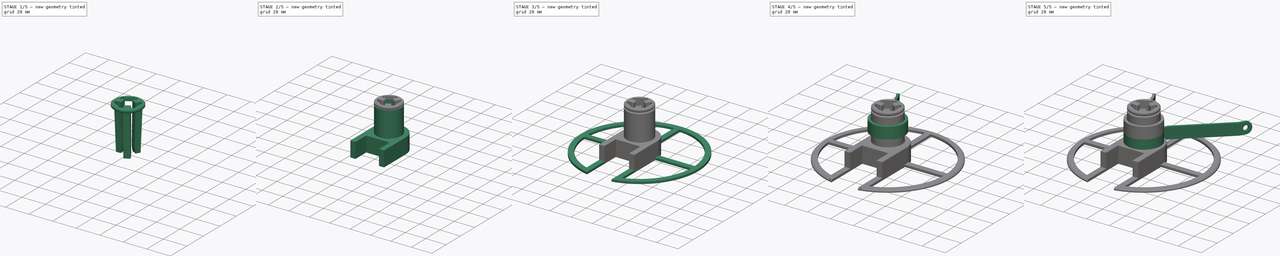
[diagram: build sequence overview — one tinted view per stage of 5, left to right]
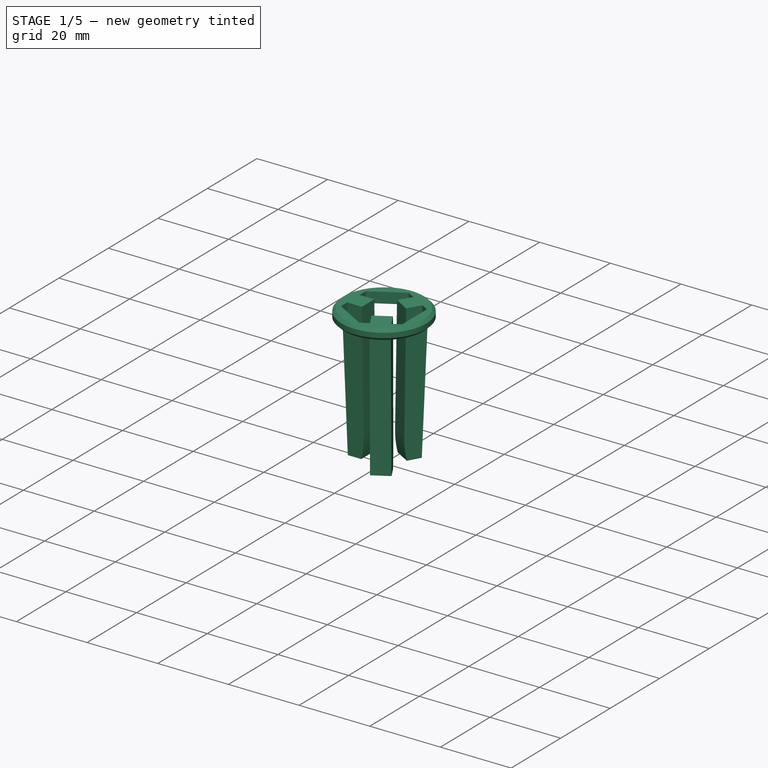
[diagram: stage 1 of 5 — iso view after this stage's code; geometry added in this stage tinted green]
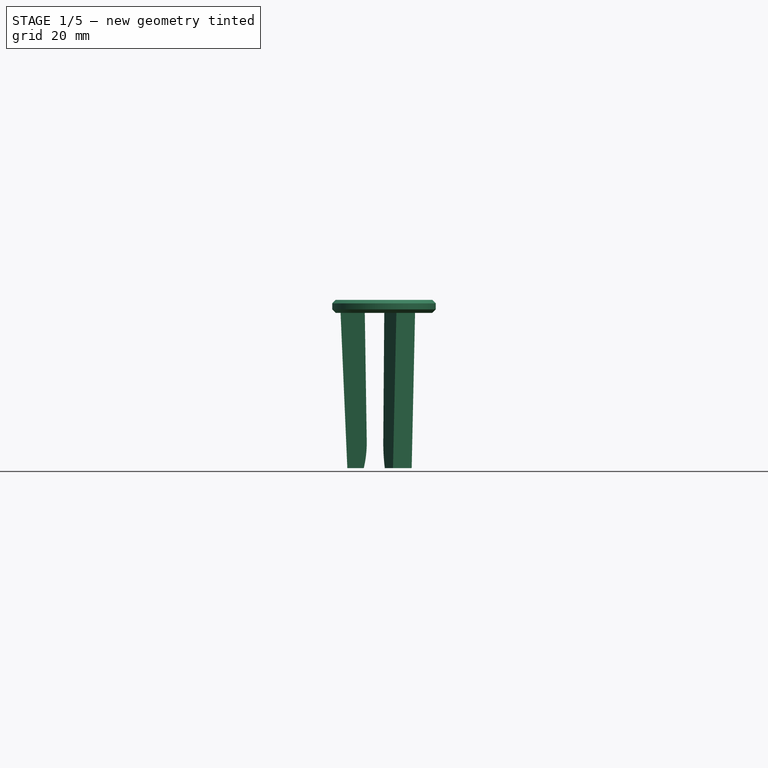
[diagram: stage 1 of 5 — front view after this stage's code; geometry added in this stage tinted green]
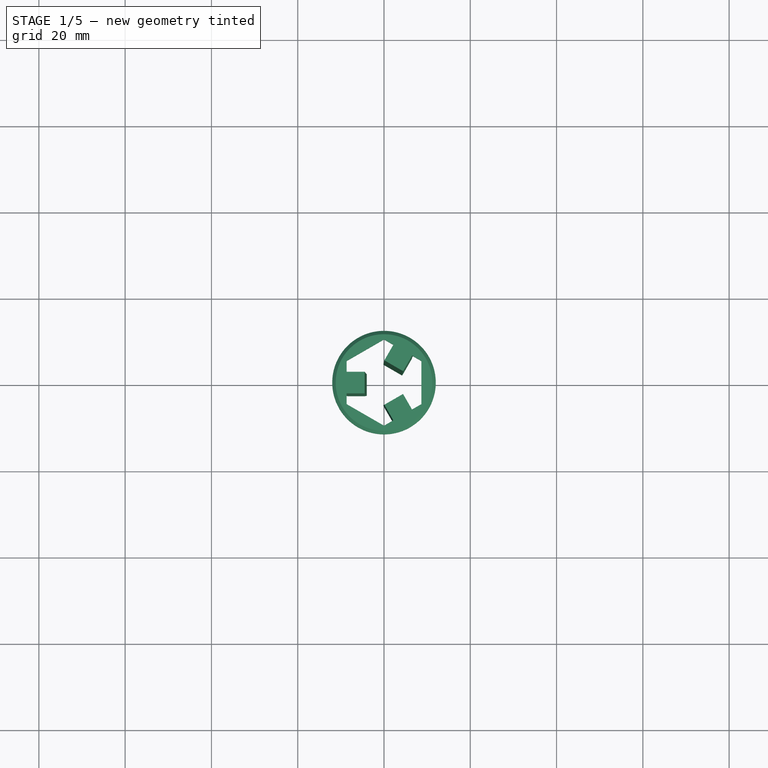
[diagram: stage 1 of 5 — top view after this stage's code; geometry added in this stage tinted green]
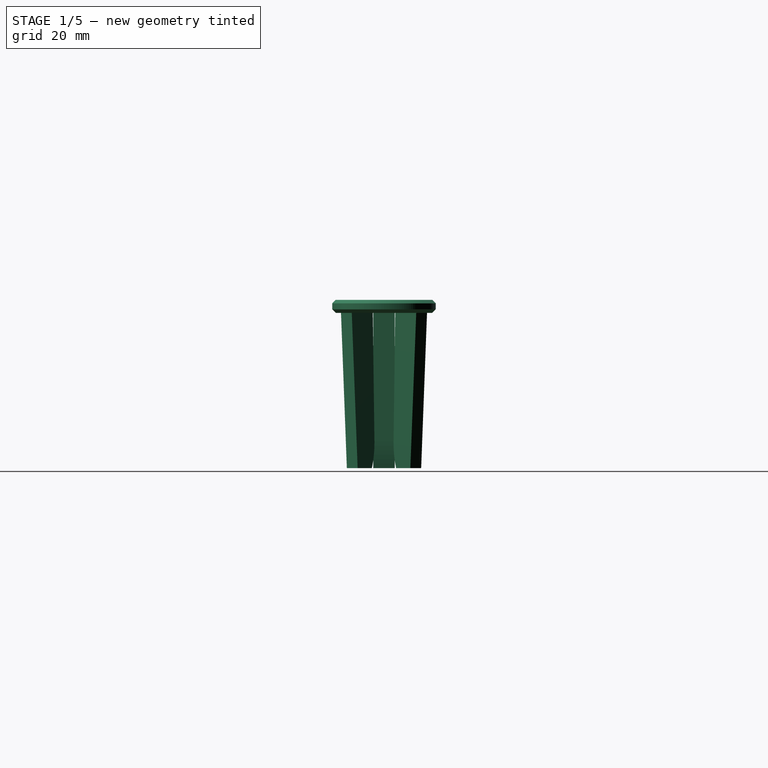
[diagram: stage 1 of 5 — right view after this stage's code; geometry added in this stage tinted green]
FCSTD DOCUMENT  (FreeCAD 0.19R)
Label: Gondola
License: All rights reserved
LicenseURL: http://en.wikipedia.org/wiki/All_rights_reserved
objects: Sketcher::SketchObject×14, PartDesign::Pad×9, PartDesign::Plane×7, PartDesign::Chamfer×6, PartDesign::Body×5, PartDesign::Pocket×3, PartDesign::Fillet×1, PartDesign::PolarPattern×1
note: 65 computed .brp shape members not serialized (recipe doc carries the construction recipe); baked Part::Feature solids carry a one-line shape summary decoded from their .brp

FEATURE [PartDesign::Body] Body  label="Main_Holder"
  Group = -> [Sketch,Pad,Sketch002,Pad001,Sketch003,Pocket,DatumPlane,Sketch004,Pocket001,Sketch009,Pad006,Sketch010,Pocket002,Chamfer,Fillet,Chamfer005]
  Origin = -> Origin
  Tip = -> Chamfer005
FEATURE [PartDesign::Plane] DatumPlane003
  Length = 60
  Placement = pos=(0,0,40) rot=(0,0,1;0rad)
  ResizeMode = 0
  Width = 60
FEATURE [Sketcher::SketchObject] Sketch011
  MapMode = 5
  Placement = pos=(0,0,40) rot=(0,0,1;0rad)
  Support = -> [DatumPlane003]
  sketch-geometry (7):
    g0: LineSegment StartX=8.74686 StartY=-5.05 StartZ=0 EndX=8.74686 EndY=5.05 EndZ=0
    g1: LineSegment StartX=8.74686 StartY=5.05 StartZ=0 EndX=1.8e-15 EndY=10.1 EndZ=0
    g2: LineSegment StartX=1.7e-15 StartY=10.1 StartZ=0 EndX=-8.74686 EndY=5.05 EndZ=0
    g3: LineSegment StartX=-8.74686 StartY=5.05 StartZ=0 EndX=-8.74686 EndY=-5.05 EndZ=0
    g4: LineSegment StartX=-8.74686 StartY=-5.05 StartZ=0 EndX=1.8e-15 EndY=-10.1 EndZ=0
    g5: LineSegment StartX=1.8e-15 StartY=-10.1 StartZ=0 EndX=8.74686 EndY=-5.05 EndZ=0
    g6: Circle [constr] CenterX=0 CenterY=0 CenterZ=0 NormalX=0 NormalY=0 NormalZ=1 AngleXU=0 Radius=10.1
  constraints (16):
    c: Coincident(g0,g1)
    c: Coincident(g1,g2)
    c: Coincident(g2,g3)
    c: Coincident(g3,g4)
    c: Coincident(g4,g5)
    c: Coincident(g5,g0)
    c: Equal(g0, g1-g5) x5
    c: PointOnObject(g0,g6)
    c: PointOnObject(g1,g6)
    c: PointOnObject(g2,g6)
    c: PointOnObject(g3,g6)
    c: PointOnObject(g4,g6)
    c: PointOnObject(g5,g6)
    c: Coincident(g6,g-1)
    c: Vertical(g0)
    c: Radius(g6) = 10.1
FEATURE [PartDesign::Plane] DatumPlane004
  Length = 252.183
  Placement = pos=(0,0,40) rot=(0,0,1;0rad)
  ResizeMode = 0
  Width = 60
FEATURE [PartDesign::Plane] DatumPlane005
  Length = 60
  Placement = pos=(0,0,60) rot=(0,0,1;0rad)
  ResizeMode = 0
  Width = 60
FEATURE [Sketcher::SketchObject] Sketch012
  MapMode = 5
  Placement = pos=(0,0,60) rot=(0,0,1;0rad)
  Support = -> [DatumPlane005]
  sketch-geometry (7):
    g0: LineSegment StartX=8.22724 StartY=-4.75 StartZ=0 EndX=8.22724 EndY=4.75 EndZ=0
    g1: LineSegment StartX=8.22724 StartY=4.75 StartZ=0 EndX=1.581e-13 EndY=9.5 EndZ=0
    g2: LineSegment StartX=1.579e-13 StartY=9.5 StartZ=0 EndX=-8.22724 EndY=4.75 EndZ=0
    g3: LineSegment StartX=-8.22724 StartY=4.75 StartZ=0 EndX=-8.22724 EndY=-4.75 EndZ=0
    g4: LineSegment StartX=-8.22724 StartY=-4.75 StartZ=0 EndX=1.581e-13 EndY=-9.5 EndZ=0
    g5: LineSegment StartX=1.582e-13 StartY=-9.5 StartZ=0 EndX=8.22724 EndY=-4.75 EndZ=0
    g6: Circle [constr] CenterX=0 CenterY=0 CenterZ=0 NormalX=0 NormalY=0 NormalZ=1 AngleXU=0 Radius=9.5
  constraints (16):
    c: Coincident(g0,g1)
    c: Coincident(g1,g2)
    c: Coincident(g2,g3)
    c: Coincident(g3,g4)
    c: Coincident(g4,g5)
    c: Coincident(g5,g0)
    c: Equal(g0, g1-g5) x5
    c: PointOnObject(g0,g6)
    c: PointOnObject(g1,g6)
    c: PointOnObject(g2,g6)
    c: PointOnObject(g3,g6)
    c: PointOnObject(g4,g6)
    c: PointOnObject(g5,g6)
    c: Coincident(g6,g-1)
    c: Vertical(g0)
    c: Radius(g6) = 9.5
FEATURE [PartDesign::Body] Body003  label="Insert"
  Group = -> [DatumPlane003,Sketch011,DatumPlane005,Sketch012]
  Origin = -> Origin003
FEATURE [Sketcher::SketchObject] Sketch013
  MapMode = 5
  Placement = pos=(0,0,0) rot=(1,0,0;1.5708rad)
  Support = -> [XZ_Plane004]
  sketch-geometry (5):
    g0: LineSegment StartX=-10.2 StartY=43 StartZ=0 EndX=-4.5 EndY=43 EndZ=0
    g1: LineSegment StartX=-4.5 StartY=43 StartZ=0 EndX=-4 EndY=10.196 EndZ=0
    g2: LineSegment StartX=-10.2 StartY=43 StartZ=0 EndX=-8.5 EndY=4 EndZ=0
    g3: LineSegment StartX=-8.5 StartY=4 StartZ=0 EndX=-4.68998 EndY=4 EndZ=0
    g4: ArcOfCircle CenterX=-28.7739 CenterY=9.81838 CenterZ=0 NormalX=0 NormalY=0 NormalZ=1 AngleXU=0 Radius=24.7767 StartAngle=6.04614 EndAngle=6.29843
  constraints (15):
    c: Horizontal(g0)
    c: Coincident(g0,g1)
    c: Coincident(g0,g2)
    c: Coincident(g2,g3)
    c: Horizontal(g3)
    c: Coincident(g4,g3)
    c: Tangent(g4,g1) = 1.5708
    c: DistanceY(g-1,g0) = 43
    c: DistanceX(g0,g-1) = 4.5
    c: DistanceX(g2,g-1) = 8.5
    c: DistanceX(g0,g-1) = 10.2
    c: DistanceY(g-1,g3) = 4
    c: DistanceX(g1,g-1) = 4
    c: DistanceX(g4) = -28.7739
    c: DistanceY(g4) = 9.81837
FEATURE [PartDesign::Pad] Pad007
  Direction = (1,1,1)
  Length = 5
  Length2 = 100
  Midplane = true
  Placement = pos=(0,0,0) rot=(1,0,0;1.5708rad)
  Profile = -> Sketch013
  Type = 0
FEATURE [PartDesign::Plane] DatumPlane006
  Length = 60
  Placement = pos=(0,0,40) rot=(0,0,1;0rad)
  ResizeMode = 0
  Width = 60
FEATURE [Sketcher::SketchObject] Sketch014
  MapMode = 5
  Placement = pos=(0,0,40) rot=(0,0,1;0rad)
  Support = -> [DatumPlane006]
  sketch-geometry (8):
    g0: LineSegment StartX=8.66025 StartY=-5 StartZ=0 EndX=8.66025 EndY=5 EndZ=0
    g1: LineSegment StartX=8.66025 StartY=5 StartZ=0 EndX=3.3964e-12 EndY=10 EndZ=0
    g2: LineSegment StartX=3.3964e-12 StartY=10 StartZ=0 EndX=-8.66025 EndY=5 EndZ=0
    g3: LineSegment StartX=-8.66025 StartY=5 StartZ=0 EndX=-8.66025 EndY=-5 EndZ=0
    g4: LineSegment StartX=-8.66025 StartY=-5 StartZ=0 EndX=3.3964e-12 EndY=-10 EndZ=0
    g5: LineSegment StartX=3.3964e-12 StartY=-10 StartZ=0 EndX=8.66025 EndY=-5 EndZ=0
    g6: Circle [constr] CenterX=0 CenterY=0 CenterZ=0 NormalX=0 NormalY=0 NormalZ=1 AngleXU=0 Radius=10
    g7: Circle CenterX=0 CenterY=0 CenterZ=0 NormalX=0 NormalY=0 NormalZ=1 AngleXU=0 Radius=12
  constraints (18):
    c: Coincident(g0,g1)
    c: Coincident(g1,g2)
    c: Coincident(g2,g3)
    c: Coincident(g3,g4)
    c: Coincident(g4,g5)
    c: Coincident(g5,g0)
    c: Equal(g0, g1-g5) x5
    c: PointOnObject(g0,g6)
    c: PointOnObject(g1,g6)
    c: PointOnObject(g2,g6)
    c: PointOnObject(g3,g6)
    c: PointOnObject(g4,g6)
    c: PointOnObject(g5,g6)
    c: Coincident(g6,g-1)
    c: Vertical(g0)
    c: Radius(g6) = 10
    c: Coincident(g7,g-1)
    c: Radius(g7) = 12
FEATURE [PartDesign::Pad] Pad008
  BaseFeature = -> Pad007
  Direction = (1,1,1)
  Length = 3
  Length2 = 100
  Placement = pos=(0,0,0) rot=(1,0,0;1.5708rad)
  Profile = -> Sketch014
  Type = 0
FEATURE [PartDesign::PolarPattern] PolarPattern
  Angle = 360
  Axis = -> Sketch014 [N_Axis]
  BaseFeature = -> Pad008
  Occurrences = 3
  Originals = -> [Pad008,Pad007]
  Placement = pos=(0,0,0) rot=(1,0,0;1.5708rad)
FEATURE [PartDesign::Chamfer] Chamfer006
  Angle = 45
  Base = -> PolarPattern [Edge8,Edge7,Edge2,Edge27,Edge4,Edge5]
  BaseFeature = -> PolarPattern
  ChamferType = 0
  FlipDirection = false
  Placement = pos=(0,0,0) rot=(1,0,0;1.5708rad)
  Size = 0.8
  Size2 = 1
  SupportTransform = false
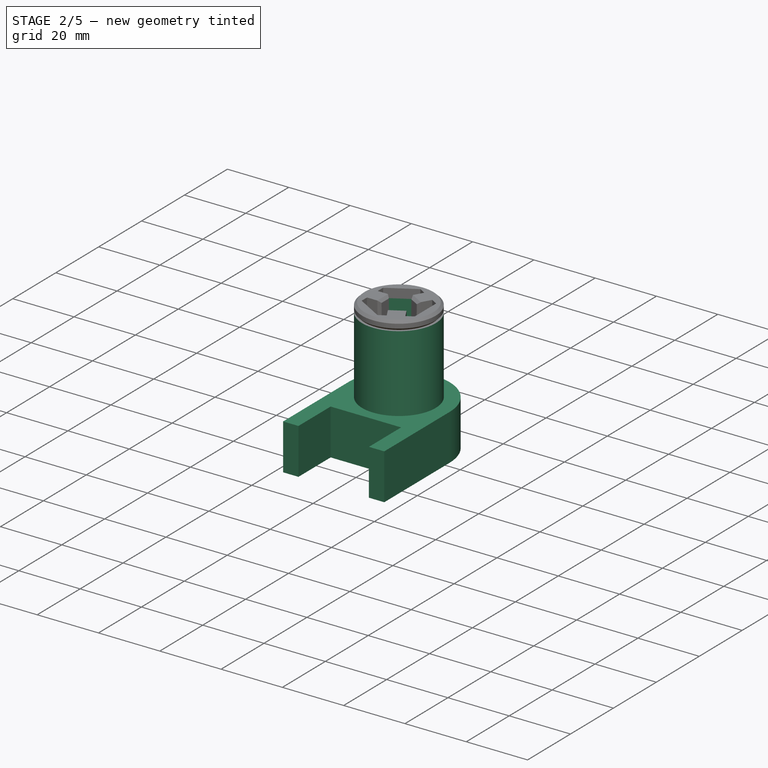
[diagram: stage 2 of 5 — iso view after this stage's code; geometry added in this stage tinted green]
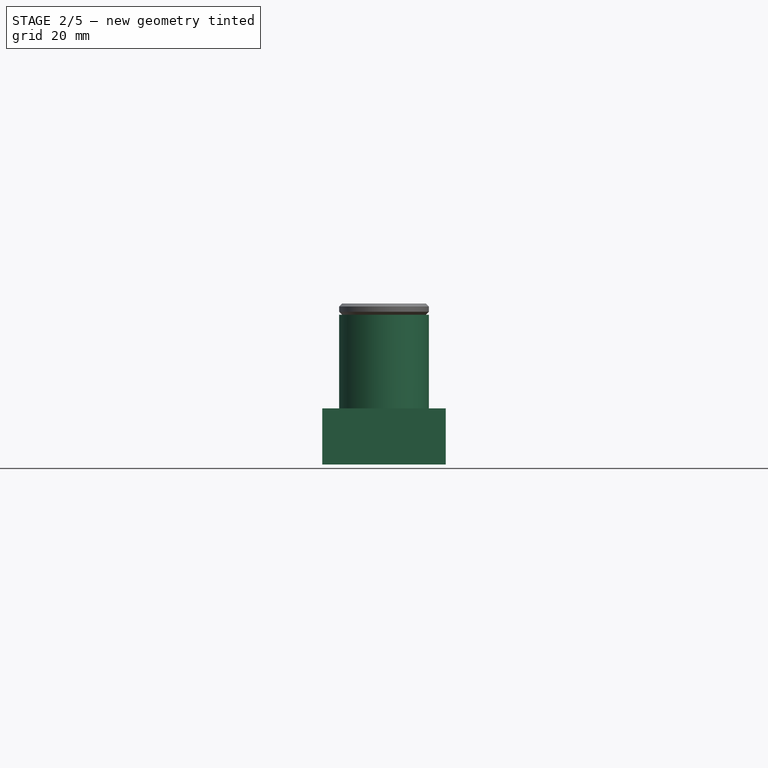
[diagram: stage 2 of 5 — front view after this stage's code; geometry added in this stage tinted green]
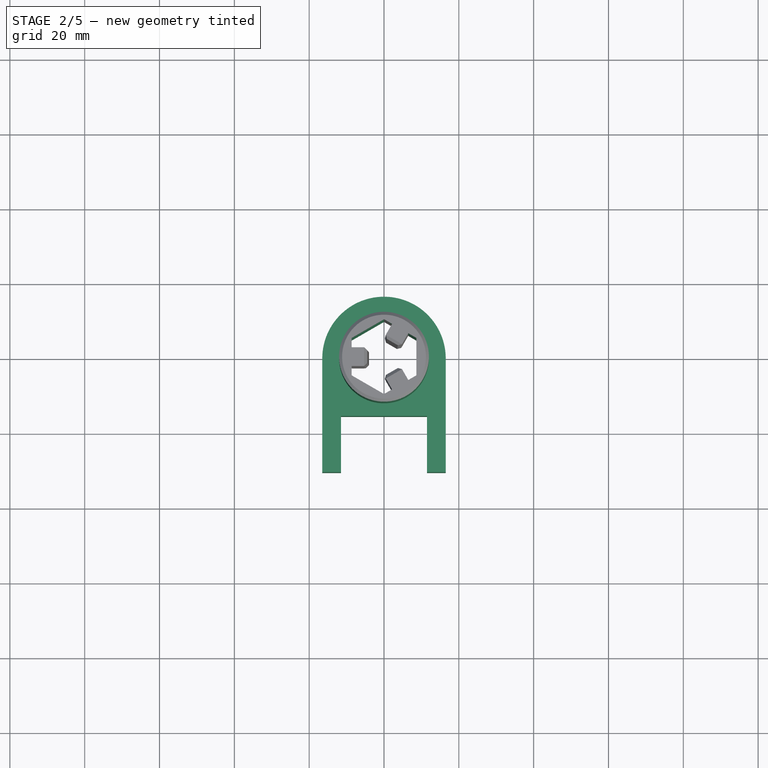
[diagram: stage 2 of 5 — top view after this stage's code; geometry added in this stage tinted green]
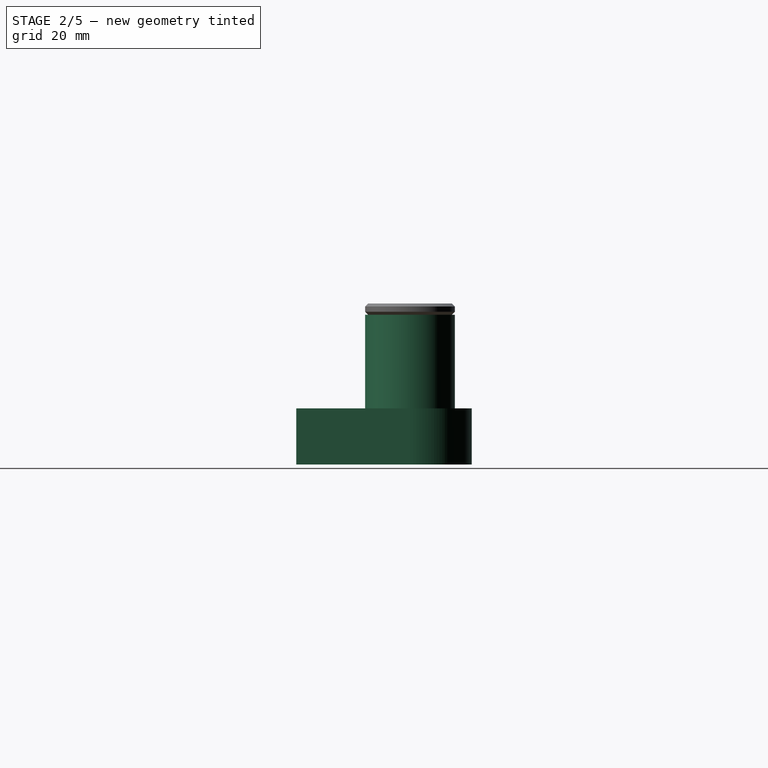
[diagram: stage 2 of 5 — right view after this stage's code; geometry added in this stage tinted green]
FEATURE [Sketcher::SketchObject] Sketch
  MapMode = 5
  Support = -> [XY_Plane]
  sketch-geometry (9):
    g0: Circle [constr] CenterX=0 CenterY=0 CenterZ=0 NormalX=0 NormalY=0 NormalZ=1 AngleXU=0 Radius=10.3923
    g1: LineSegment StartX=-16.5 StartY=-30.3923 StartZ=0 EndX=-11.5 EndY=-30.3923 EndZ=0
    g2: LineSegment StartX=-11.5 StartY=-30.3923 StartZ=0 EndX=-11.5 EndY=-15.3923 EndZ=0
    g3: LineSegment StartX=-11.5 StartY=-15.3923 StartZ=0 EndX=11.5 EndY=-15.3923 EndZ=0
    g4: LineSegment StartX=11.5 StartY=-15.3923 StartZ=0 EndX=11.5 EndY=-30.3923 EndZ=0
    g5: LineSegment StartX=11.5 StartY=-30.3923 StartZ=0 EndX=16.5 EndY=-30.3923 EndZ=0
    g6: LineSegment StartX=16.5 StartY=-30.3923 StartZ=0 EndX=16.5 EndY=0 EndZ=0
    g7: LineSegment StartX=-16.5 StartY=-30.3923 StartZ=0 EndX=-16.5 EndY=-3.6e-15 EndZ=0
    g8: ArcOfCircle CenterX=0 CenterY=0 CenterZ=0 NormalX=0 NormalY=0 NormalZ=1 AngleXU=0 Radius=16.5 StartAngle=0 EndAngle=3.14159
  constraints (19):
    c: Horizontal(g1)
    c: Coincident(g1,g2)
    c: Coincident(g2,g3)
    c: Coincident(g3,g4)
    c: Vertical(g4)
    c: Coincident(g4,g5)
    c: Horizontal(g5)
    c: Coincident(g5,g6)
    c: Vertical(g6)
    c: Coincident(g1,g7)
    c: Vertical(g7)
    c: Tangent(g8,g7) = 1.5708
    c: Tangent(g8,g6) = -1.5708
    c: Vertical(g2)
    c: Symmetric(g2,g3,g-2)
    c: Equal(g7,g6)
    c: DistanceX(g1,g4) = 23
    c: DistanceX(g1,g1) = 5
    c: DistanceY(g1,g2) = 15
FEATURE [PartDesign::Pad] Pad
  Direction = (1,1,1)
  Length = 15
  Length2 = 100
  Profile = -> Sketch
  Type = 0
FEATURE [Sketcher::SketchObject] Sketch002
  MapMode = 5
  Placement = pos=(0,0,15) rot=(0,0,1;0rad)
  Support = -> [Pad]
  sketch-geometry (8):
    g0: LineSegment [constr] StartX=0 StartY=-10 StartZ=0 EndX=8.66025 EndY=-5 EndZ=0
    g1: LineSegment [constr] StartX=8.66025 StartY=-5 StartZ=0 EndX=8.66025 EndY=5 EndZ=0
    g2: LineSegment [constr] StartX=8.66025 StartY=5 StartZ=0 EndX=2.6059e-12 EndY=10 EndZ=0
    g3: LineSegment [constr] StartX=2.6059e-12 StartY=10 StartZ=0 EndX=-8.66025 EndY=5 EndZ=0
    g4: LineSegment [constr] StartX=-8.66025 StartY=5 StartZ=0 EndX=-8.66025 EndY=-5 EndZ=0
    g5: LineSegment [constr] StartX=-8.66025 StartY=-5 StartZ=0 EndX=0 EndY=-10 EndZ=0
    g6: Circle [constr] CenterX=0 CenterY=0 CenterZ=0 NormalX=0 NormalY=0 NormalZ=1 AngleXU=0 Radius=10
    g7: Circle CenterX=0 CenterY=0 CenterZ=0 NormalX=0 NormalY=0 NormalZ=1 AngleXU=0 Radius=12
  constraints (18):
    c: Coincident(g0,g1)
    c: Coincident(g1,g2)
    c: Coincident(g2,g3)
    c: Coincident(g3,g4)
    c: Coincident(g4,g5)
    c: Coincident(g5,g0)
    c: Equal(g0, g1-g5) x5
    c: PointOnObject(g0,g6)
    c: PointOnObject(g1,g6)
    c: PointOnObject(g2,g6)
    c: PointOnObject(g3,g6)
    c: PointOnObject(g4,g6)
    c: PointOnObject(g5,g6)
    c: Coincident(g6,g-1)
    c: PointOnObject(g5,g-2)
    c: Radius(g6) = 10
    c: Coincident(g7,g-1)
    c: Radius(g7) = 12
FEATURE [PartDesign::Pad] Pad001
  BaseFeature = -> Pad
  Direction = (1,1,1)
  Length = 25
  Length2 = 100
  Profile = -> Sketch002
  Type = 0
FEATURE [Sketcher::SketchObject] Sketch003
  MapMode = 5
  Placement = pos=(0,0,40) rot=(0,0,1;0rad)
  Support = -> [Pad001]
  sketch-geometry (7):
    g0: LineSegment StartX=0 StartY=-10 StartZ=0 EndX=8.66025 EndY=-5 EndZ=0
    g1: LineSegment StartX=8.66025 StartY=-5 StartZ=0 EndX=8.66025 EndY=5 EndZ=0
    g2: LineSegment StartX=8.66025 StartY=5 StartZ=0 EndX=1.6e-14 EndY=10 EndZ=0
    g3: LineSegment StartX=1.6e-14 StartY=10 StartZ=0 EndX=-8.66025 EndY=5 EndZ=0
    g4: LineSegment StartX=-8.66025 StartY=5 StartZ=0 EndX=-8.66025 EndY=-5 EndZ=0
    g5: LineSegment StartX=-8.66025 StartY=-5 StartZ=0 EndX=0 EndY=-10 EndZ=0
    g6: Circle [constr] CenterX=0 CenterY=0 CenterZ=0 NormalX=0 NormalY=0 NormalZ=1 AngleXU=0 Radius=10
  constraints (16):
    c: Coincident(g0,g1)
    c: Coincident(g1,g2)
    c: Coincident(g2,g3)
    c: Coincident(g3,g4)
    c: Coincident(g4,g5)
    c: Coincident(g5,g0)
    c: Equal(g0, g1-g5) x5
    c: PointOnObject(g0,g6)
    c: PointOnObject(g1,g6)
    c: PointOnObject(g2,g6)
    c: PointOnObject(g3,g6)
    c: PointOnObject(g4,g6)
    c: PointOnObject(g5,g6)
    c: Coincident(g6,g-1)
    c: PointOnObject(g5,g-2)
    c: Radius(g6) = 10
FEATURE [PartDesign::Pocket] Pocket
  BaseFeature = -> Pad001
  Length = 5
  Length2 = 100
  Profile = -> Sketch003
  Type = 1
FEATURE [PartDesign::Chamfer] Chamfer007
  Angle = 45
  Base = -> Chamfer006 [Face35,Face34,Face42,Face43,Face39,Face38]
  BaseFeature = -> Chamfer006
  ChamferType = 0
  FlipDirection = false
  Placement = pos=(0,0,0) rot=(1,0,0;1.5708rad)
  Size = 0.8
  Size2 = 1
  SupportTransform = false
FEATURE [PartDesign::Body] Body004  label="Insert1"
  Group = -> [Sketch013,Pad007,DatumPlane006,Sketch014,Pad008,PolarPattern,Chamfer006,Chamfer007]
  Origin = -> Origin004
  Tip = -> Chamfer007
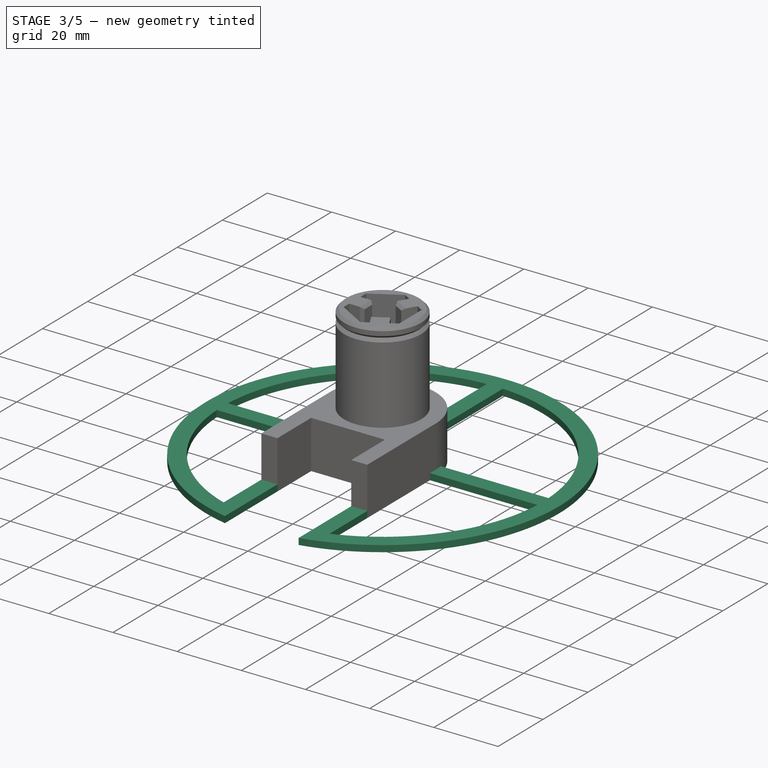
[diagram: stage 3 of 5 — iso view after this stage's code; geometry added in this stage tinted green]
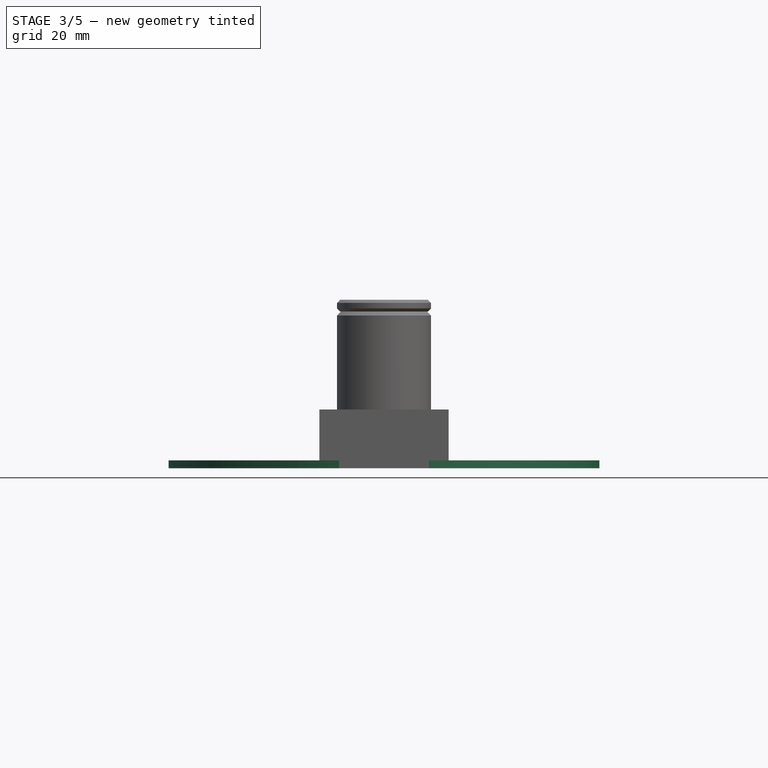
[diagram: stage 3 of 5 — front view after this stage's code; geometry added in this stage tinted green]
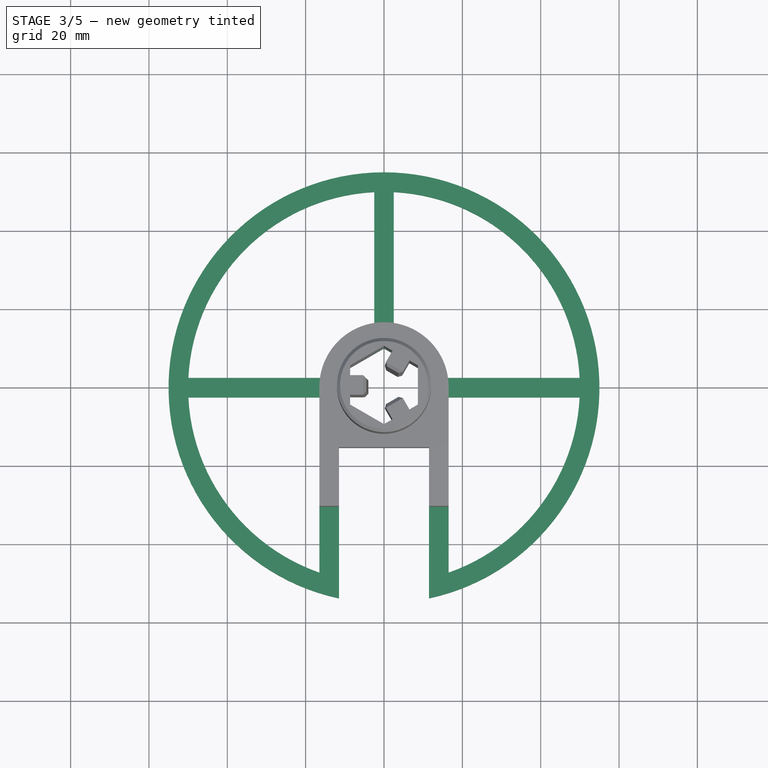
[diagram: stage 3 of 5 — top view after this stage's code; geometry added in this stage tinted green]
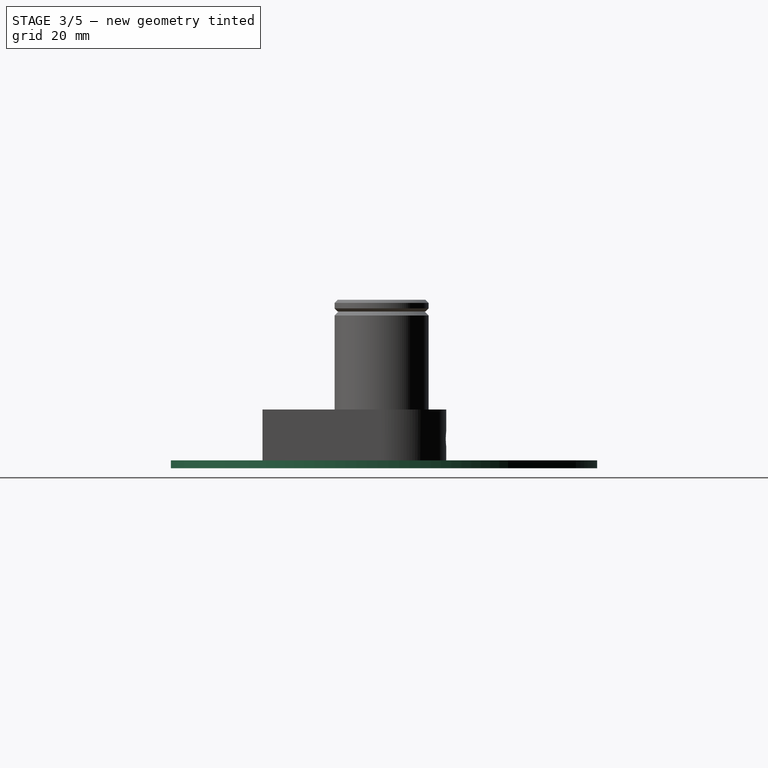
[diagram: stage 3 of 5 — right view after this stage's code; geometry added in this stage tinted green]
FEATURE [PartDesign::Plane] DatumPlane
  AttachmentOffset = pos=(0,-5,-28) rot=(0,0,1;0rad)
  Length = 126.89
  MapMode = 5
  Placement = pos=(0,12.6077,-5) rot=(1,0,0;1.5708rad)
  ResizeMode = 0
  Support = -> [Pad]
  Width = 81.91
FEATURE [Sketcher::SketchObject] Sketch004
  ExternalGeometry = -> [Pad]
  MapMode = 5
  Placement = pos=(0,12.6077,-5) rot=(1,0,0;1.5708rad)
  Support = -> [DatumPlane]
  sketch-geometry (3):
    g0: LineSegment [constr] StartX=11.5 StartY=20 StartZ=0 EndX=-11.5 EndY=5 EndZ=0
    g1: LineSegment [constr] StartX=-11.5 StartY=20 StartZ=0 EndX=11.5 EndY=5 EndZ=0
    g2: Circle CenterX=0 CenterY=12.5 CenterZ=0 NormalX=0 NormalY=0 NormalZ=1 AngleXU=0 Radius=2
  constraints (7):
    c: PointOnObject(g2,g-2)
    c: Coincident(g1,g-4)
    c: Coincident(g0,g-3)
    c: Coincident(g1,g-3)
    c: Coincident(g0,g-4)
    c: PointOnObject(g2,g0)
    c: Radius(g2) = 2
FEATURE [PartDesign::Pocket] Pocket001
  BaseFeature = -> Pocket
  Length = 10
  Length2 = 100
  Profile = -> Sketch004
  Type = 0
FEATURE [Sketcher::SketchObject] Sketch009
  ExternalGeometry = -> [Pocket001]
  MapMode = 5
  Support = -> [XY_Plane]
  sketch-geometry (22):
    g0: ArcOfCircle CenterX=0 CenterY=0 CenterZ=0 NormalX=0 NormalY=0 NormalZ=1 AngleXU=0 Radius=55 StartAngle=4.92303 EndAngle=10.7849
    g1: ArcOfCircle CenterX=0 CenterY=0 CenterZ=0 NormalX=0 NormalY=0 NormalZ=1 AngleXU=0 Radius=50 StartAngle=1.62082 EndAngle=3.09157
    g2: LineSegment StartX=-2.5 StartY=16.3095 StartZ=0 EndX=-2.5 EndY=49.9375 EndZ=0
    g3: LineSegment StartX=2.5 StartY=16.3095 StartZ=0 EndX=2.5 EndY=49.9375 EndZ=0
    g4: ArcOfCircle CenterX=0 CenterY=0 CenterZ=0 NormalX=0 NormalY=0 NormalZ=1 AngleXU=0 Radius=16.5 StartAngle=1.4187 EndAngle=1.7229
    g5: LineSegment StartX=-11.5 StartY=-30.3923 StartZ=0 EndX=-11.5 EndY=-53.7843 EndZ=0
    g6: LineSegment StartX=11.5 StartY=-30.3923 StartZ=0 EndX=11.5 EndY=-53.7843 EndZ=0
    g7: LineSegment StartX=-16.5 StartY=-30.3923 StartZ=0 EndX=-16.5 EndY=-47.199 EndZ=0
    g8: LineSegment StartX=16.5 StartY=-30.3923 StartZ=0 EndX=16.5 EndY=-47.199 EndZ=0
    g9: ArcOfCircle CenterX=0 CenterY=0 CenterZ=0 NormalX=0 NormalY=0 NormalZ=1 AngleXU=0 Radius=50 StartAngle=5.04869 EndAngle=6.23316
    g10: LineSegment StartX=-16.5 StartY=-30.3923 StartZ=0 EndX=-11.5 EndY=-30.3923 EndZ=0
    g11: LineSegment StartX=11.5 StartY=-30.3923 StartZ=0 EndX=16.5 EndY=-30.3923 EndZ=0
    g12: LineSegment StartX=-16.5 StartY=-2.5 StartZ=0 EndX=-49.9375 EndY=-2.5 EndZ=0
    g13: LineSegment StartX=-16.3095 StartY=2.5 StartZ=0 EndX=-49.9375 EndY=2.5 EndZ=0
    g14: LineSegment StartX=16.3095 StartY=2.5 StartZ=0 EndX=49.9375 EndY=2.5 EndZ=0
    g15: LineSegment StartX=16.5 StartY=-2.5 StartZ=0 EndX=49.9375 EndY=-2.5 EndZ=0
    g16: ArcOfCircle CenterX=0 CenterY=0 CenterZ=0 NormalX=0 NormalY=0 NormalZ=1 AngleXU=0 Radius=50 StartAngle=3.19161 EndAngle=4.37609
    g17: ArcOfCircle CenterX=0 CenterY=0 CenterZ=0 NormalX=0 NormalY=0 NormalZ=1 AngleXU=0 Radius=50 StartAngle=0.0500209 EndAngle=1.52078
    g18: LineSegment StartX=-16.5 StartY=-2.5 StartZ=0 EndX=-16.5 EndY=-5.3e-15 EndZ=0
    g19: LineSegment StartX=16.5 StartY=-2.5 StartZ=0 EndX=16.5 EndY=0 EndZ=0
    g20: ArcOfCircle CenterX=0 CenterY=0 CenterZ=0 NormalX=0 NormalY=0 NormalZ=1 AngleXU=0 Radius=16.5 StartAngle=2.98949 EndAngle=3.14159
    g21: ArcOfCircle CenterX=0 CenterY=0 CenterZ=0 NormalX=0 NormalY=0 NormalZ=1 AngleXU=0 Radius=16.5 StartAngle=0 EndAngle=0.152101
  constraints (58):
    c: Coincident(g0,g-1)
    c: Coincident(g1,g0)
    c: PointOnObject(g2,g-5)
    c: Vertical(g2)
    c: Vertical(g3)
    c: Coincident(g1,g2)
    c: Coincident(g17,g3)
    c: Coincident(g4,g0)
    c: Coincident(g4,g2)
    c: Coincident(g4,g3)
    c: Coincident(g5,g-6)
    c: Vertical(g5)
    c: Coincident(g6,g-7)
    c: Vertical(g6)
    c: Coincident(g7,g-4)
    c: Vertical(g7)
    c: Coincident(g8,g-3)
    c: PointOnObject(g8,g1)
    c: Vertical(g8)
    c: Coincident(g0,g6)
    c: Coincident(g0,g5)
    c: Coincident(g1,g9)
    c: Coincident(g16,g7)
    c: PointOnObject(g9,g8)
    c: Symmetric(g3,g1,g-2)
    c: Radius(g0) = 55
    c: Radius(g1) = 50
    c: DistanceX(g1,g3) = 5
    c: Coincident(g10,g7)
    c: Coincident(g10,g5)
    c: Coincident(g11,g6)
    c: Coincident(g11,g8)
    c: PointOnObject(g12,g-4)
    c: Horizontal(g12)
    c: Horizontal(g13)
    c: Horizontal(g14)
    c: PointOnObject(g15,g-3)
    c: Horizontal(g15)
    c: Coincident(g1,g13)
    c: Coincident(g16,g12)
    c: Coincident(g1,g16)
    c: Coincident(g9,g15)
    c: Coincident(g17,g14)
    c: Coincident(g9,g17)
    c: Coincident(g18,g12)
    c: Coincident(g18,g-5)
    c: Coincident(g19,g15)
    c: Coincident(g20,g0)
    c: Coincident(g20,g18)
    c: Coincident(g20,g13)
    c: Coincident(g21,g0)
    c: Coincident(g21,g14)
    c: Coincident(g21,g19)
    c: Symmetric(g12,g1,g-1)
    c: Symmetric(g9,g14,g-1)
    c: DistanceY(g12,g1) = 5
    c: DistanceY(g9,g14) = 5
    c: Coincident(g19,g-5)
FEATURE [PartDesign::Pad] Pad006
  BaseFeature = -> Pocket001
  Direction = (1,1,1)
  Length = 2
  Length2 = 100
  Profile = -> Sketch009
  Type = 0
FEATURE [PartDesign::Body] Body001  label="Arm1"
  Group = -> [Sketch005,Pad002,DatumPlane001,Sketch006,Pad003,Chamfer002]
  Origin = -> Origin001
  Placement = pos=(0,0,2) rot=(0,0,1;0rad)
  Tip = -> Chamfer002
FEATURE [Sketcher::SketchObject] Sketch010
  ExternalGeometry = -> [Sketch004]
  MapMode = 5
  Placement = pos=(0,12.6077,-5) rot=(1,0,0;1.5708rad)
  Support = -> [DatumPlane]
  sketch-geometry (7):
    g0: LineSegment StartX=5.6e-15 StartY=8.34308 StartZ=0 EndX=3.6 EndY=10.4215 EndZ=0
    g1: LineSegment StartX=3.6 StartY=10.4215 StartZ=0 EndX=3.6 EndY=14.5785 EndZ=0
    g2: LineSegment StartX=3.6 StartY=14.5785 StartZ=0 EndX=0 EndY=16.6569 EndZ=0
    g3: LineSegment StartX=-4e-16 StartY=16.6569 StartZ=0 EndX=-3.6 EndY=14.5785 EndZ=0
    g4: LineSegment StartX=-3.6 StartY=14.5785 StartZ=0 EndX=-3.6 EndY=10.4215 EndZ=0
    g5: LineSegment StartX=-3.6 StartY=10.4215 StartZ=0 EndX=5.8e-15 EndY=8.34308 EndZ=0
    g6: Circle [constr] CenterX=0 CenterY=12.5 CenterZ=0 NormalX=0 NormalY=0 NormalZ=1 AngleXU=0 Radius=4.15692
  constraints (16):
    c: Coincident(g0,g1)
    c: Coincident(g1,g2)
    c: Coincident(g2,g3)
    c: Coincident(g3,g4)
    c: Coincident(g4,g5)
    c: Coincident(g5,g0)
    c: Equal(g0, g1-g5) x5
    c: PointOnObject(g0,g6)
    c: PointOnObject(g1,g6)
    c: PointOnObject(g2,g6)
    c: PointOnObject(g3,g6)
    c: PointOnObject(g4,g6)
    c: PointOnObject(g5,g6)
    c: Coincident(g6,g-3)
    c: DistanceX(g4,g0) = 7.2
    c: Vertical(g1)
FEATURE [PartDesign::Pocket] Pocket002
  BaseFeature = -> Pad006
  Length = 5
  Length2 = 100
  Profile = -> Sketch010
  Reversed = true
  Type = 0
FEATURE [PartDesign::Body] Body002  label="Arm002"
  Group = -> [Sketch007,Pad005,DatumPlane002,Sketch008,Pad004,Chamfer004]
  Origin = -> Origin002
  Placement = pos=(0,0,2) rot=(0,0,1;0rad)
  Tip = -> Chamfer004
FEATURE [PartDesign::Chamfer] Chamfer
  Angle = 45
  Base = -> Pocket002 [Edge97]
  BaseFeature = -> Pocket002
  ChamferType = 0
  FlipDirection = false
  Size = 1
  Size2 = 1
  SupportTransform = false
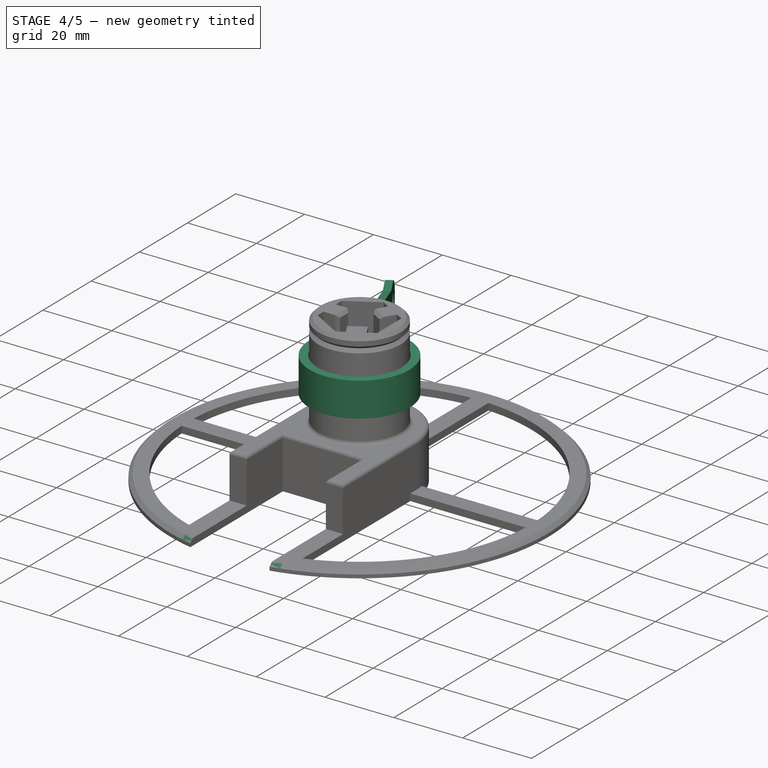
[diagram: stage 4 of 5 — iso view after this stage's code; geometry added in this stage tinted green]
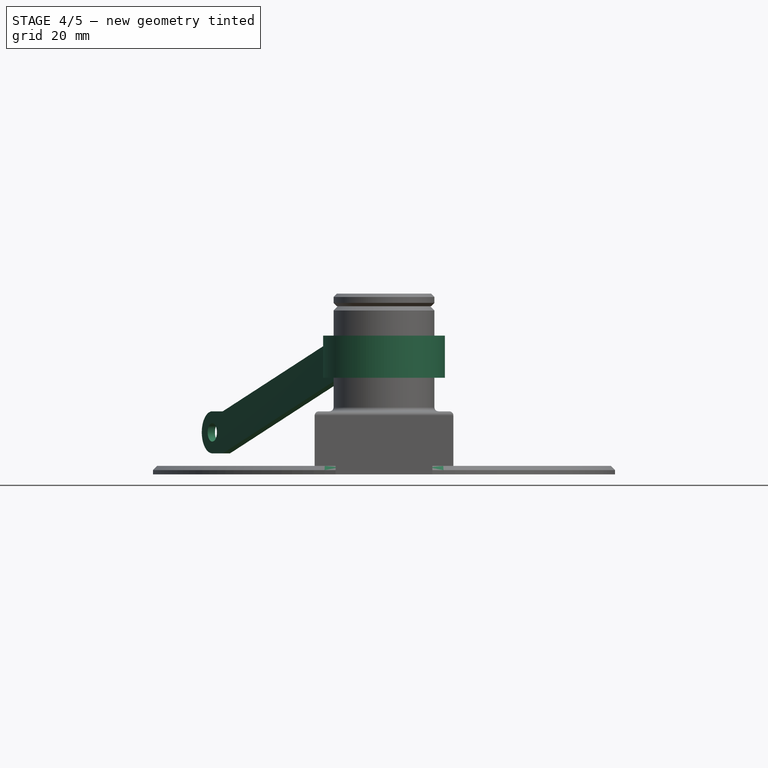
[diagram: stage 4 of 5 — front view after this stage's code; geometry added in this stage tinted green]
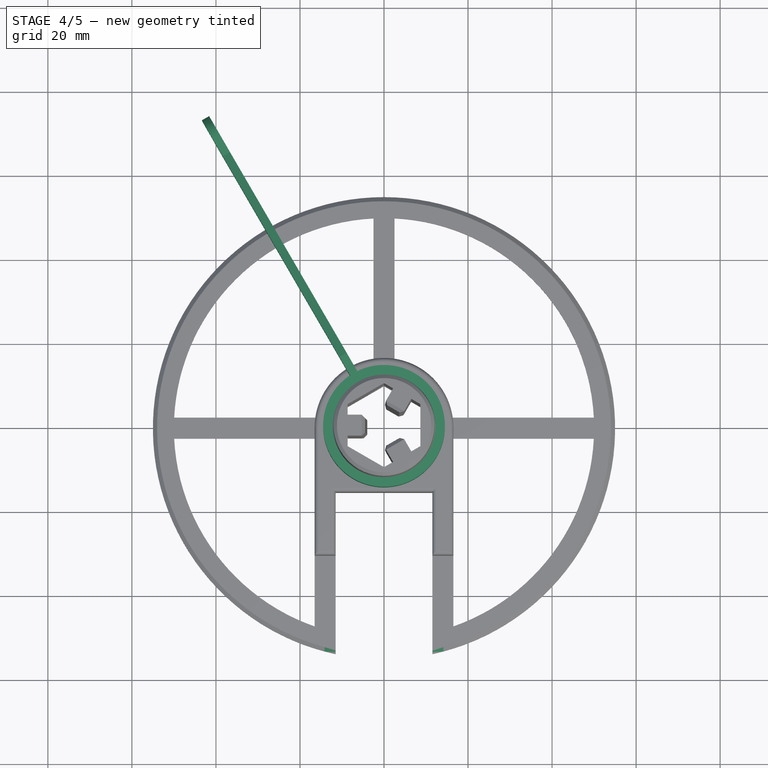
[diagram: stage 4 of 5 — top view after this stage's code; geometry added in this stage tinted green]
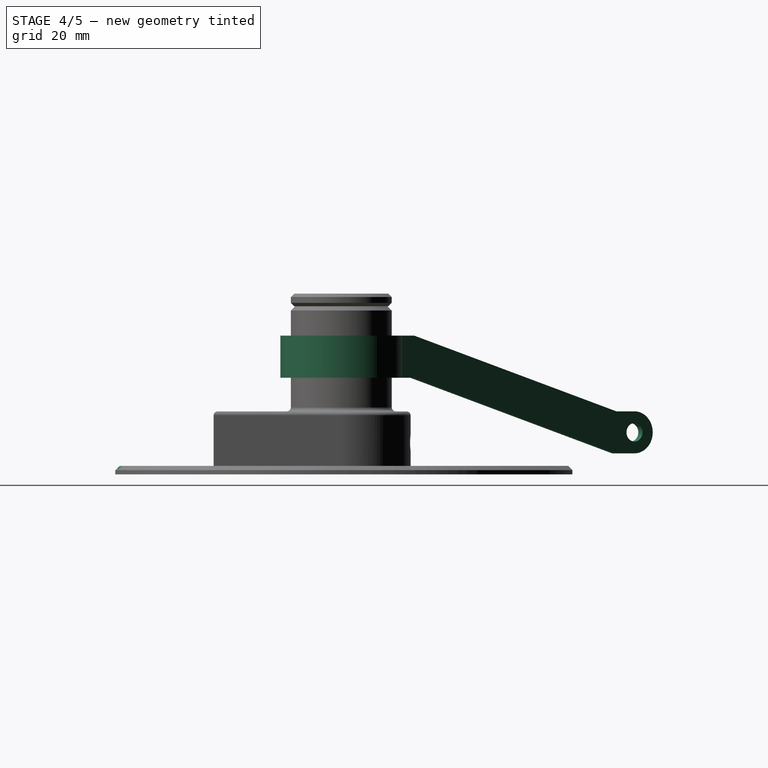
[diagram: stage 4 of 5 — right view after this stage's code; geometry added in this stage tinted green]
FEATURE [Sketcher::SketchObject] Sketch007
  MapMode = 5
  Placement = pos=(0,0,23) rot=(0,0,1;2.0944rad)
  sketch-geometry (2):
    g0: Circle CenterX=0 CenterY=0 CenterZ=0 NormalX=0 NormalY=0 NormalZ=1 AngleXU=0 Radius=12.2
    g1: Circle CenterX=0 CenterY=0 CenterZ=0 NormalX=0 NormalY=0 NormalZ=1 AngleXU=0 Radius=14.5
  constraints (4):
    c: Coincident(g0,g-1)
    c: Radius(g0) = 12.2
    c: Coincident(g1,g0)
    c: Radius(g1) = 14.5
FEATURE [PartDesign::Pad] Pad005
  Direction = (1,1,1)
  Length = 10
  Length2 = 100
  Placement = pos=(0,0,23) rot=(0,0,1;2.0944rad)
  Profile = -> Sketch007
  Type = 0
FEATURE [PartDesign::Plane] DatumPlane002
  Length = 79.989
  MapMode = 3
  Placement = pos=(0,0,23) rot=(0.377964,0.654654,0.654654;2.41886rad)
  ResizeMode = 0
  Support = -> [Pad005]
  Width = 61.6877
FEATURE [Sketcher::SketchObject] Sketch008
  ExternalGeometry = -> [Pad005]
  MapMode = 5
  Placement = pos=(0,0,23) rot=(0.377964,0.654654,0.654654;2.41886rad)
  Support = -> [DatumPlane002]
  sketch-geometry (11):
    g0: LineSegment StartX=14.5 StartY=-3.6e-15 StartZ=0 EndX=19.5 EndY=-3.6e-15 EndZ=0
    g1: LineSegment StartX=19.5 StartY=-3.6e-15 StartZ=0 EndX=75 EndY=-18 EndZ=0
    g2: LineSegment StartX=14.5 StartY=10 StartZ=0 EndX=19.5 EndY=10 EndZ=0
    g3: LineSegment StartX=19.5 StartY=10 StartZ=0 EndX=75 EndY=-8 EndZ=0
    g4: LineSegment StartX=75 StartY=-8 StartZ=0 EndX=80 EndY=-8 EndZ=0
    g5: LineSegment StartX=80 StartY=-18 StartZ=0 EndX=75 EndY=-18 EndZ=0
    g6: LineSegment StartX=14.5 StartY=10 StartZ=0 EndX=13.5 EndY=10 EndZ=0
    g7: LineSegment StartX=13.5 StartY=10 StartZ=0 EndX=13.5 EndY=-3.6e-15 EndZ=0
    g8: LineSegment StartX=13.5 StartY=-3.6e-15 StartZ=0 EndX=14.5 EndY=-3.6e-15 EndZ=0
    g9: ArcOfCircle CenterX=80 CenterY=-13 CenterZ=0 NormalX=0 NormalY=0 NormalZ=1 AngleXU=0 Radius=5 StartAngle=4.71239 EndAngle=7.85398
    g10: Circle CenterX=80 CenterY=-13 CenterZ=0 NormalX=0 NormalY=0 NormalZ=1 AngleXU=0 Radius=2.2
  constraints (29):
    c: Coincident(g-3,g0)
    c: Horizontal(g0)
    c: Coincident(g0,g1)
    c: Horizontal(g2)
    c: Coincident(g2,g3)
    c: Equal(g0,g2)
    c: Equal(g1,g3)
    c: DistanceY(g1,g3) = 10
    c: DistanceX(g2,g2) = 5
    c: Coincident(g3,g4)
    c: Horizontal(g4)
    c: Coincident(g5,g1)
    c: Horizontal(g5)
    c: DistanceX(g5,g5) = 5
    c: DistanceY(g-1,g1) = -18
    c: DistanceX(g5) = 80
    c: Coincident(g2,g-3)
    c: Coincident(g2,g6)
    c: Horizontal(g6)
    c: Coincident(g6,g7)
    c: Vertical(g7)
    c: Coincident(g7,g8)
    c: Coincident(g8,g0)
    c: Horizontal(g8)
    c: DistanceX(g6,g2) = 1
    c: Tangent(g9,g4) = 1.5708
    c: Tangent(g9,g5) = 1.5708
    c: Coincident(g10,g9)
    c: Radius(g10) = 2.2
FEATURE [PartDesign::Pad] Pad004
  BaseFeature = -> Pad005
  Direction = (1,1,1)
  Length = 2
  Length2 = 100
  Midplane = true
  Placement = pos=(0,0,23) rot=(0,0,1;2.0944rad)
  Profile = -> Sketch008
  Type = 0
FEATURE [PartDesign::Fillet] Fillet
  Base = -> Chamfer [Face3]
  BaseFeature = -> Chamfer
  Radius = 1
  SupportTransform = false
FEATURE [PartDesign::Chamfer] Chamfer005
  Angle = 45
  Base = -> Fillet [Edge110]
  BaseFeature = -> Fillet
  ChamferType = 0
  FlipDirection = false
  Size = 1
  Size2 = 1
  SupportTransform = false
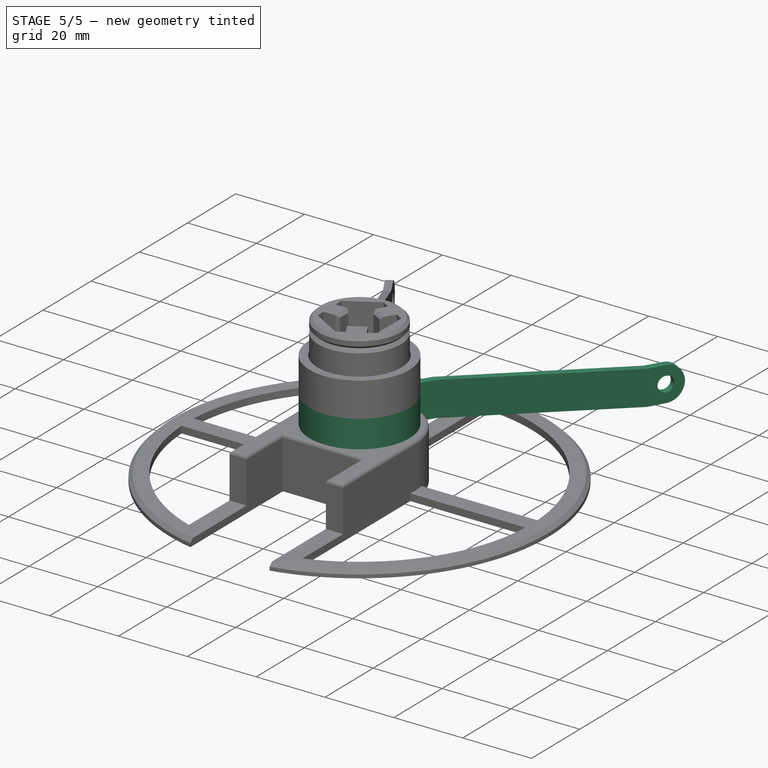
[diagram: stage 5 of 5 — iso view after this stage's code; geometry added in this stage tinted green]
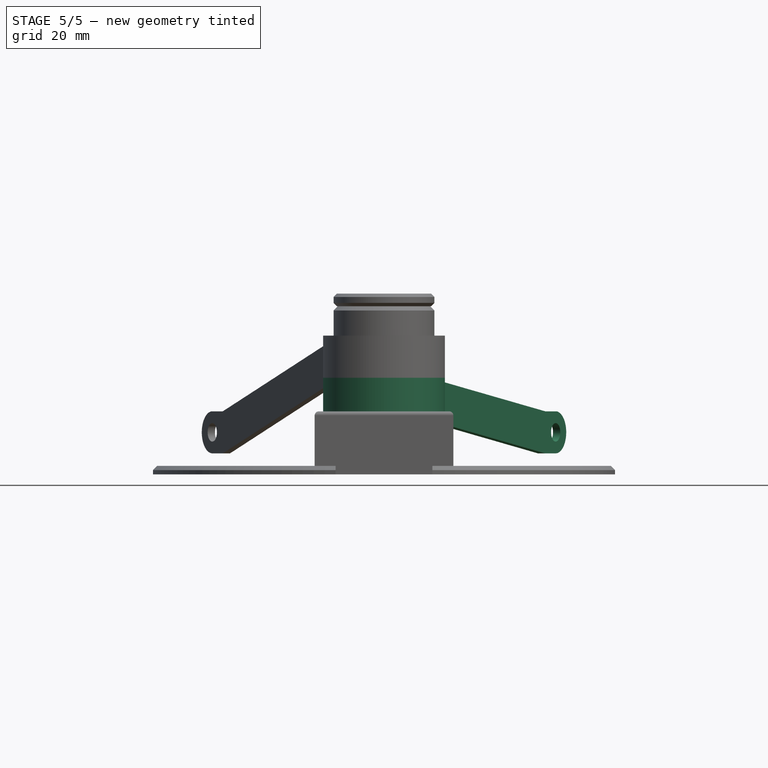
[diagram: stage 5 of 5 — front view after this stage's code; geometry added in this stage tinted green]
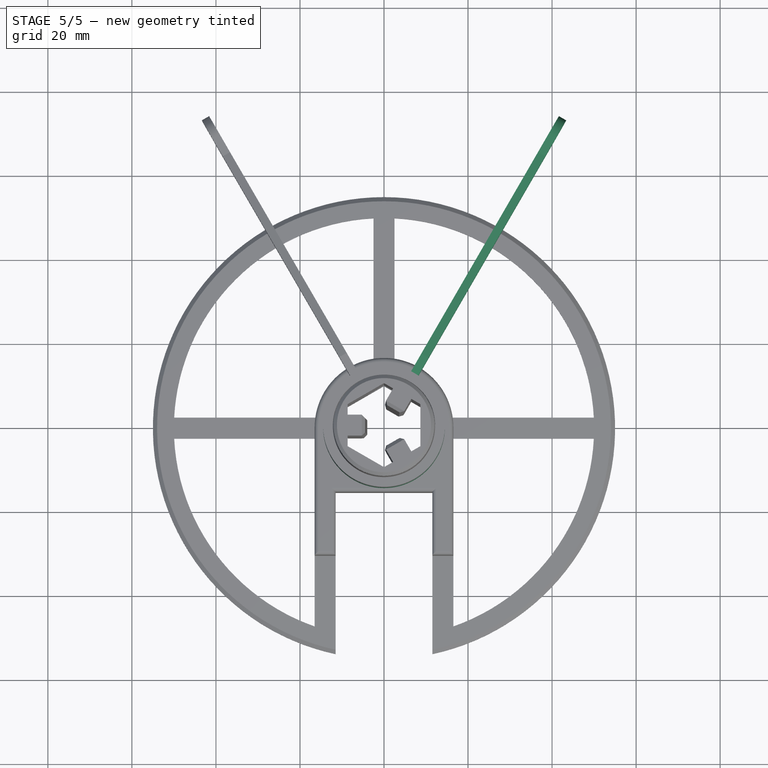
[diagram: stage 5 of 5 — top view after this stage's code; geometry added in this stage tinted green]
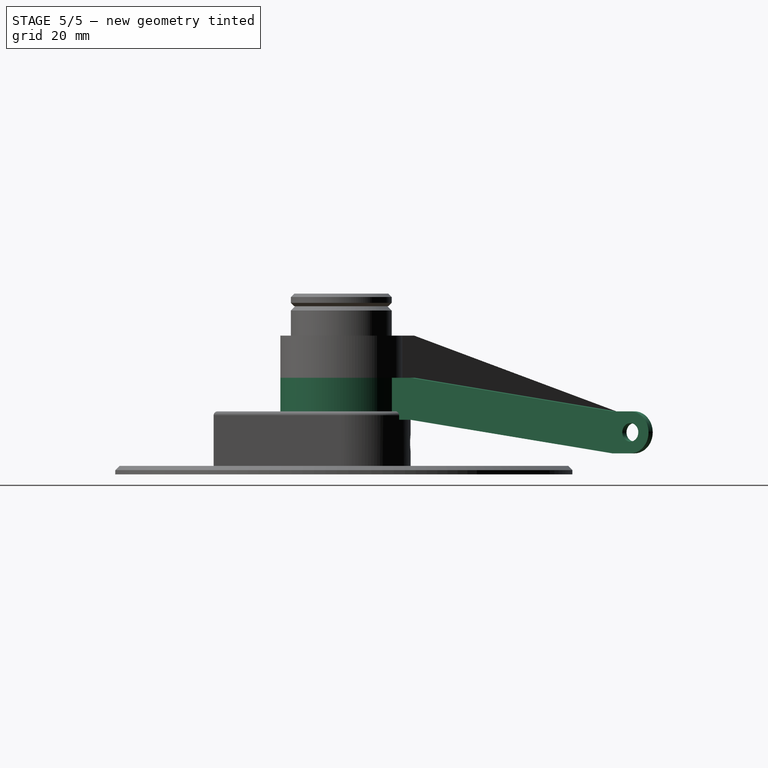
[diagram: stage 5 of 5 — right view after this stage's code; geometry added in this stage tinted green]
FEATURE [Sketcher::SketchObject] Sketch005
  MapMode = 5
  Placement = pos=(0,0,13) rot=(0,0,1;1.0472rad)
  sketch-geometry (2):
    g0: Circle CenterX=0 CenterY=0 CenterZ=0 NormalX=0 NormalY=0 NormalZ=1 AngleXU=0 Radius=12.2
    g1: Circle CenterX=0 CenterY=0 CenterZ=0 NormalX=0 NormalY=0 NormalZ=1 AngleXU=0 Radius=14.5
  constraints (4):
    c: Coincident(g0,g-1)
    c: Radius(g0) = 12.2
    c: Coincident(g1,g0)
    c: Radius(g1) = 14.5
FEATURE [PartDesign::Pad] Pad002
  Direction = (1,1,1)
  Length = 10
  Length2 = 100
  Placement = pos=(0,0,13) rot=(0,0,1;1.0472rad)
  Profile = -> Sketch005
  Type = 0
FEATURE [PartDesign::Plane] DatumPlane001
  Length = 79.989
  MapMode = 3
  Placement = pos=(0,0,13) rot=(0.774597,0.447214,0.447214;1.82348rad)
  ResizeMode = 0
  Support = -> [Pad002]
  Width = 61.6877
FEATURE [Sketcher::SketchObject] Sketch006
  ExternalGeometry = -> [Pad002]
  MapMode = 5
  Placement = pos=(0,0,13) rot=(0.774597,0.447214,0.447214;1.82348rad)
  Support = -> [DatumPlane001]
  sketch-geometry (11):
    g0: LineSegment StartX=14.5 StartY=0 StartZ=0 EndX=19.5 EndY=0 EndZ=0
    g1: LineSegment StartX=19.5 StartY=0 StartZ=0 EndX=75 EndY=-8 EndZ=0
    g2: LineSegment StartX=14.5 StartY=10 StartZ=0 EndX=19.5 EndY=10 EndZ=0
    g3: LineSegment StartX=19.5 StartY=10 StartZ=0 EndX=75 EndY=2 EndZ=0
    g4: LineSegment StartX=75 StartY=2 StartZ=0 EndX=80 EndY=2 EndZ=0
    g5: LineSegment StartX=80 StartY=-8 StartZ=0 EndX=75 EndY=-8 EndZ=0
    g6: LineSegment StartX=14.5 StartY=10 StartZ=0 EndX=13.5 EndY=10 EndZ=0
    g7: LineSegment StartX=13.5 StartY=10 StartZ=0 EndX=13.5 EndY=0 EndZ=0
    g8: LineSegment StartX=13.5 StartY=0 StartZ=0 EndX=14.5 EndY=0 EndZ=0
    g9: ArcOfCircle CenterX=80 CenterY=-3 CenterZ=0 NormalX=0 NormalY=0 NormalZ=1 AngleXU=0 Radius=5 StartAngle=4.71239 EndAngle=7.85398
    g10: Circle CenterX=80 CenterY=-3 CenterZ=0 NormalX=0 NormalY=0 NormalZ=1 AngleXU=0 Radius=2.2
  constraints (29):
    c: Coincident(g-3,g0)
    c: Horizontal(g0)
    c: Coincident(g0,g1)
    c: Horizontal(g2)
    c: Coincident(g2,g3)
    c: Equal(g0,g2)
    c: Equal(g1,g3)
    c: DistanceY(g1,g3) = 10
    c: DistanceX(g2,g2) = 5
    c: Coincident(g3,g4)
    c: Horizontal(g4)
    c: Coincident(g5,g1)
    c: Horizontal(g5)
    c: DistanceX(g5,g5) = 5
    c: DistanceY(g-1,g1) = -8
    c: DistanceX(g5) = 80
    c: Coincident(g2,g-3)
    c: Coincident(g2,g6)
    c: Horizontal(g6)
    c: Coincident(g6,g7)
    c: Vertical(g7)
    c: Coincident(g7,g8)
    c: Coincident(g8,g0)
    c: Horizontal(g8)
    c: DistanceX(g6,g2) = 1
    c: Tangent(g9,g4) = 1.5708
    c: Tangent(g9,g5) = 1.5708
    c: Coincident(g10,g9)
    c: Radius(g10) = 2.2
FEATURE [PartDesign::Pad] Pad003
  BaseFeature = -> Pad002
  Direction = (1,1,1)
  Length = 2
  Length2 = 100
  Midplane = true
  Placement = pos=(0,0,13) rot=(0,0,1;1.0472rad)
  Profile = -> Sketch006
  Type = 0
FEATURE [PartDesign::Chamfer] Chamfer002
  Angle = 45
  Base = -> Pad003 [Edge9,Edge26]
  BaseFeature = -> Pad003
  ChamferType = 0
  FlipDirection = false
  Placement = pos=(0,0,13) rot=(0,0,1;1.0472rad)
  Size = 1
  Size2 = 1
  SupportTransform = false
FEATURE [PartDesign::Chamfer] Chamfer004
  Angle = 45
  Base = -> Pad004 [Edge9,Edge26]
  BaseFeature = -> Pad004
  ChamferType = 0
  FlipDirection = false
  Placement = pos=(0,0,23) rot=(0,0,1;2.0944rad)
  Size = 1
  Size2 = 1
  SupportTransform = false
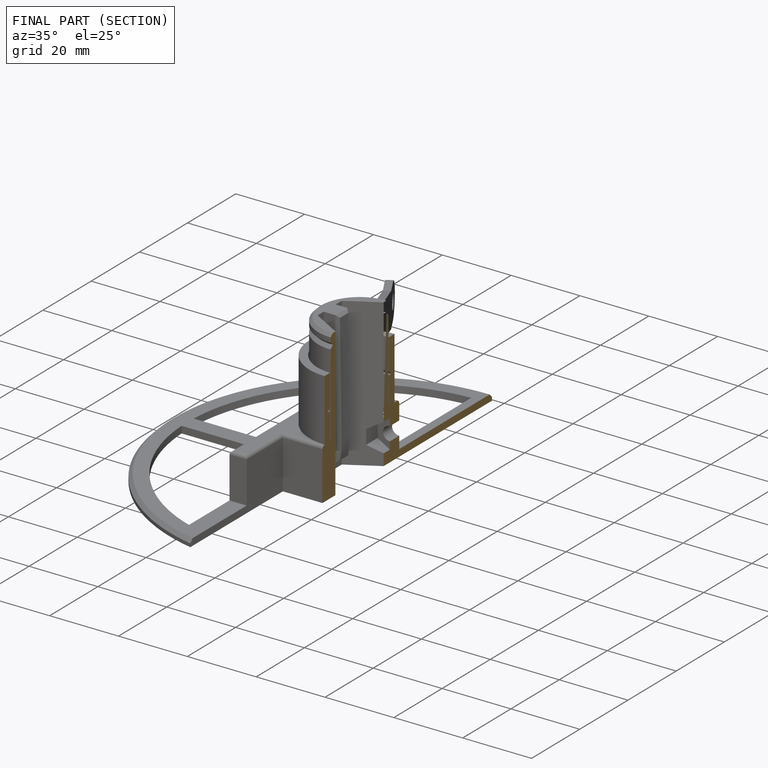
[diagram: finished part — half-section view (interior)]
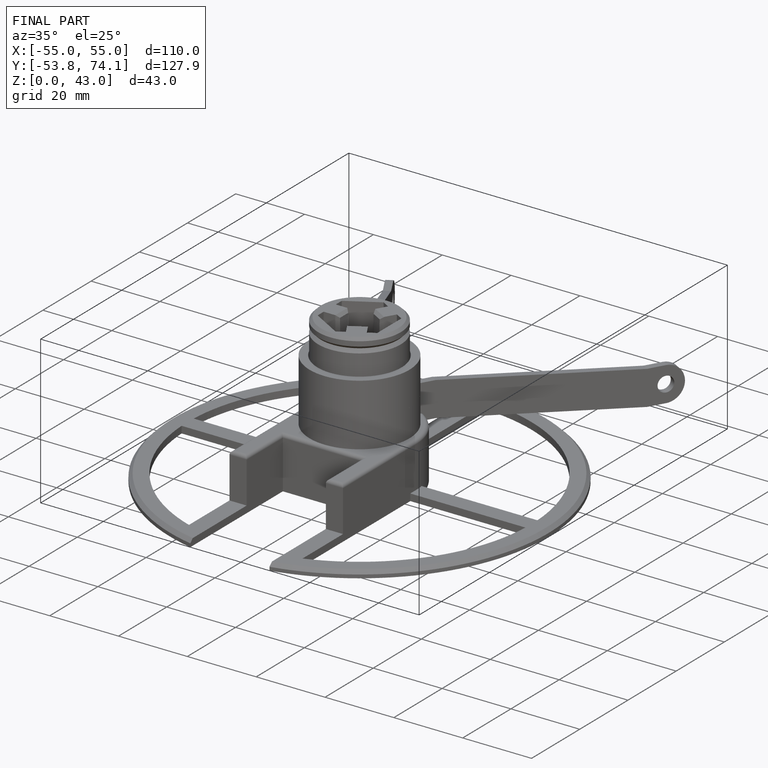
[diagram: finished part — iso view with bounding-box wireframe]
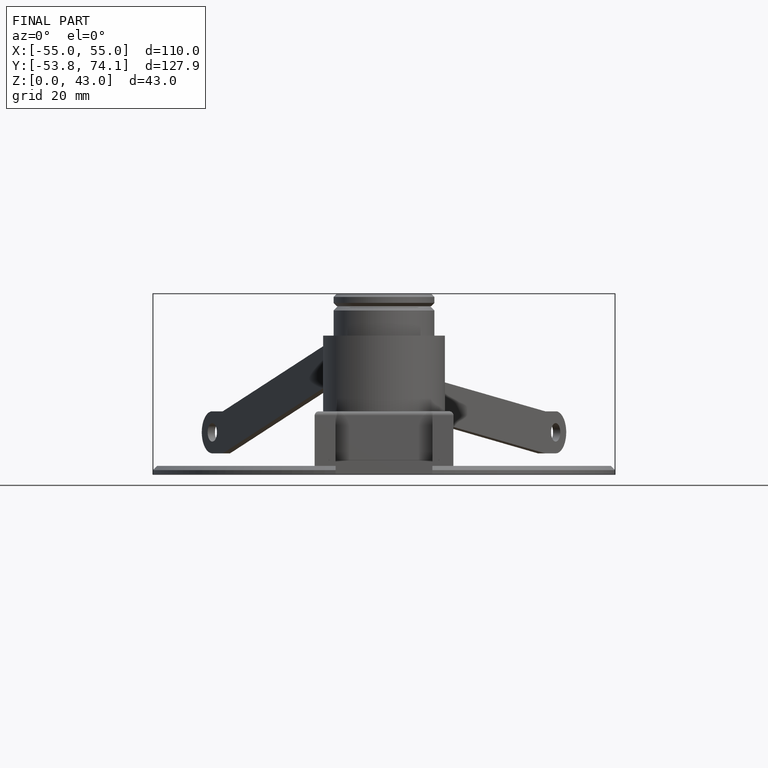
[diagram: finished part — front view with bounding-box wireframe]
